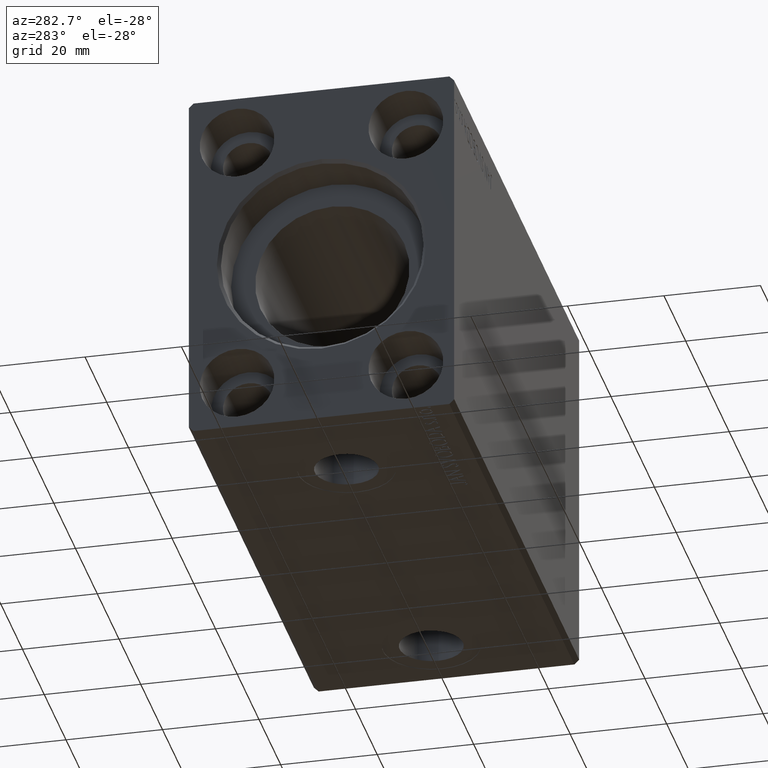
[diagram: clean part render]
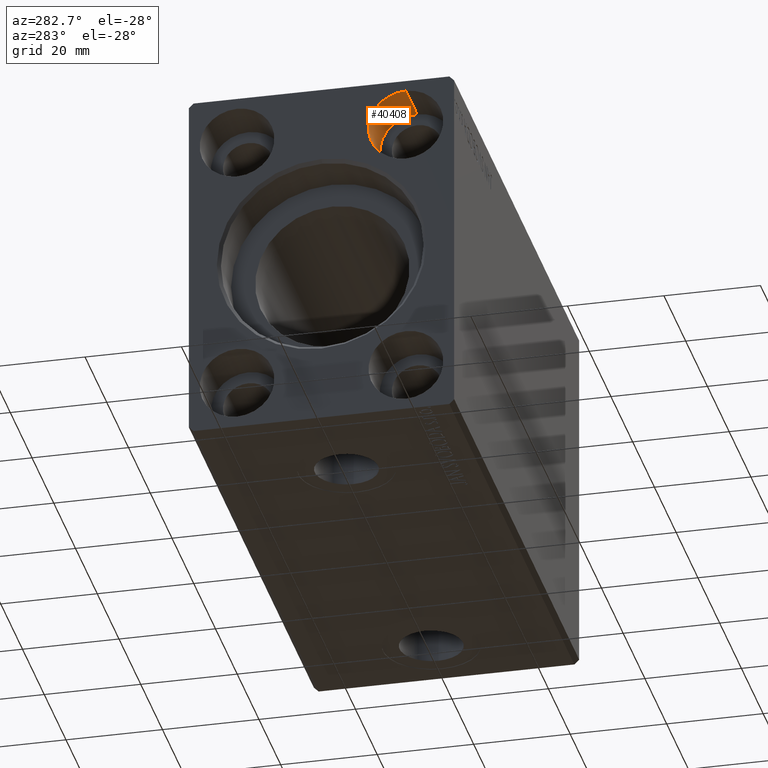
[diagram: same view with one face highlighted and labeled with its STEP entity id]
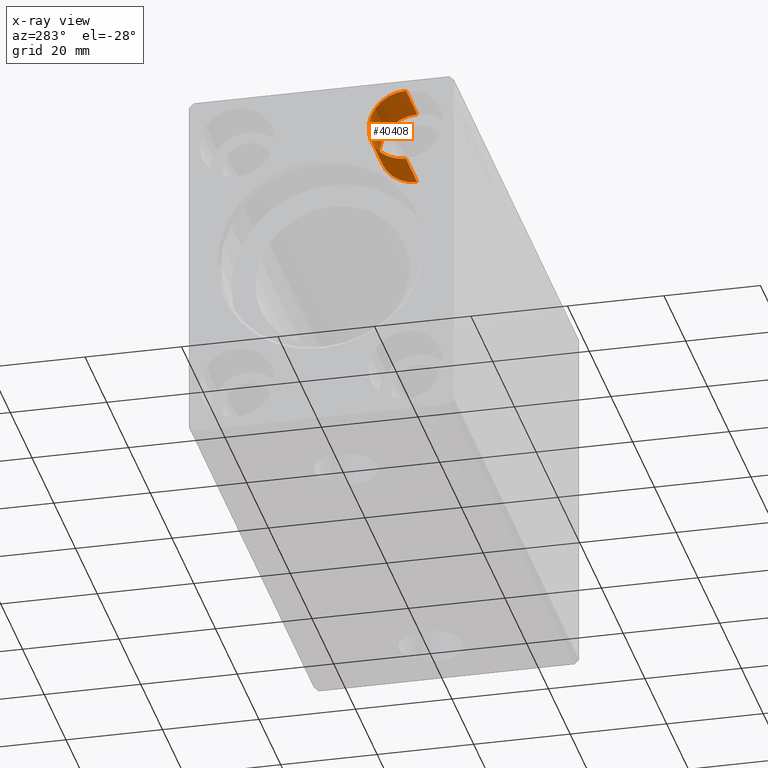
[diagram: x-ray of the same camera — body ghosted, the highlighted face saturated]
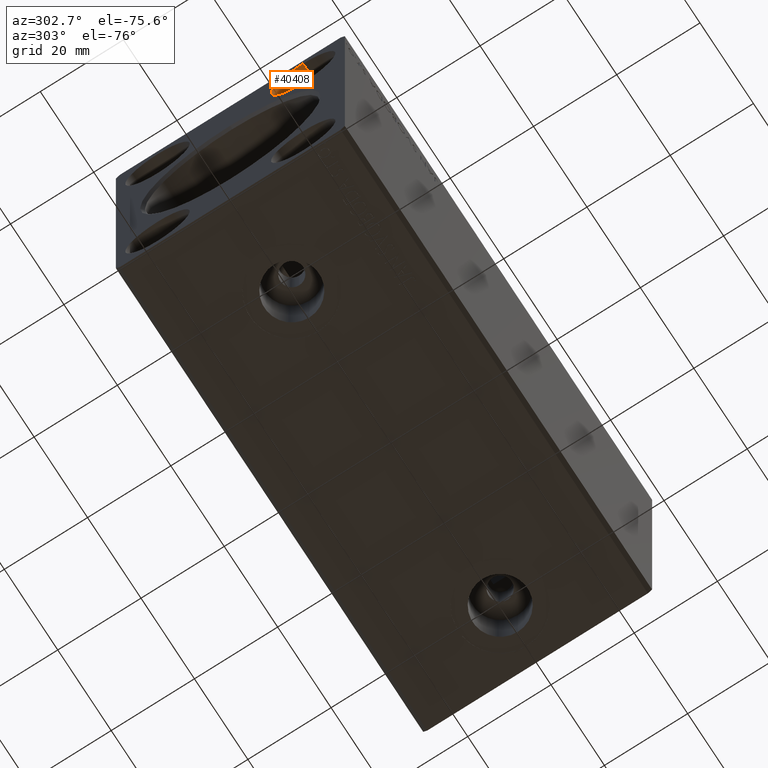
[diagram: same view with one face highlighted and labeled with its STEP entity id]
A machine part, auxiliary view. The second image highlights one B-rep face of the part: STEP entity #40408.
The next image is the same camera in x-ray: the body ghosted, the highlighted face saturated — about 0% of this face is hidden behind the body in this view.
A second angle (auxiliary view) of the same face is appended — the face is thin or edge-on in the first view.
In plain terms, the highlighted cylindrical surface (partial cylindrical patch) has radius 7.75 mm, axis along (-1, -0, -0).
Its self-contained STEP definition (entity closure, byte-faithful):
#157 = CARTESIAN_POINT ( 'NONE',  ( 10.33000000000000007, -17.50000000000000000, 19.74999999999999645 ) ) ;
#168 = VECTOR ( 'NONE', #16702, 1000.000000000000000 ) ;
#1293 = CARTESIAN_POINT ( 'NONE',  ( 0.000000000000000000, -17.50000000000000000, 35.25000000000000000 ) ) ;
#3417 = VERTEX_POINT ( 'NONE', #5822 ) ;
#4096 = EDGE_CURVE ( 'NONE', #3417, #23816, #20157, .T. ) ;
#5319 = VERTEX_POINT ( 'NONE', #19544 ) ;
#5579 = EDGE_LOOP ( 'NONE', ( #33314, #25995, #11446, #12311 ) ) ;
#5822 = CARTESIAN_POINT ( 'NONE',  ( 10.33000000000000007, -17.50000000000000000, 35.25000000000000000 ) ) ;
#9271 = VERTEX_POINT ( 'NONE', #157 ) ;
#10995 = CIRCLE ( 'NONE', #13106, 7.750000000000003553 ) ;
#11446 = ORIENTED_EDGE ( 'NONE', *, *, #4096, .T. ) ;
#12103 = DIRECTION ( 'NONE',  ( -1.000000000000000000, -0.000000000000000000, -0.000000000000000000 ) ) ;
#12188 = LINE ( 'NONE', #18225, #24893 ) ;
#12311 = ORIENTED_EDGE ( 'NONE', *, *, #39701, .T. ) ;
#13106 = AXIS2_PLACEMENT_3D ( 'NONE', #36430, #29135, #39034 ) ;
#16699 = AXIS2_PLACEMENT_3D ( 'NONE', #34532, #31087, #27634 ) ;
#16702 = DIRECTION ( 'NONE',  ( -1.000000000000000000, -0.000000000000000000, -0.000000000000000000 ) ) ;
#17700 = CYLINDRICAL_SURFACE ( 'NONE', #33960, 7.750000000000003553 ) ;
#18225 = CARTESIAN_POINT ( 'NONE',  ( 10.33000000000000007, -17.50000000000000000, 19.74999999999999645 ) ) ;
#18431 = DIRECTION ( 'NONE',  ( -1.000000000000000000, -0.000000000000000000, -0.000000000000000000 ) ) ;
#19526 = CARTESIAN_POINT ( 'NONE',  ( 10.33000000000000007, -17.50000000000000000, 35.25000000000000000 ) ) ;
#19544 = CARTESIAN_POINT ( 'NONE',  ( 0.000000000000000000, -17.50000000000000000, 19.74999999999999645 ) ) ;
#20157 = LINE ( 'NONE', #19526, #168 ) ;
#21586 = CARTESIAN_POINT ( 'NONE',  ( 10.33000000000000007, -17.50000000000000000, 27.50000000000000000 ) ) ;
#23816 = VERTEX_POINT ( 'NONE', #1293 ) ;
#24893 = VECTOR ( 'NONE', #18431, 1000.000000000000000 ) ;
#25995 = ORIENTED_EDGE ( 'NONE', *, *, #27223, .F. ) ;
#27223 = EDGE_CURVE ( 'NONE', #3417, #9271, #10995, .T. ) ;
#27634 = DIRECTION ( 'NONE',  ( 0.000000000000000000, 0.000000000000000000, 1.000000000000000000 ) ) ;
#29135 = DIRECTION ( 'NONE',  ( -1.000000000000000000, 0.000000000000000000, 0.000000000000000000 ) ) ;
#31087 = DIRECTION ( 'NONE',  ( -1.000000000000000000, 0.000000000000000000, 0.000000000000000000 ) ) ;
#31283 = FACE_OUTER_BOUND ( 'NONE', #5579, .T. ) ;
#32146 = EDGE_CURVE ( 'NONE', #9271, #5319, #12188, .T. ) ;
#33314 = ORIENTED_EDGE ( 'NONE', *, *, #32146, .F. ) ;
#33960 = AXIS2_PLACEMENT_3D ( 'NONE', #21586, #12103, #38170 ) ;
#34532 = CARTESIAN_POINT ( 'NONE',  ( 0.000000000000000000, -17.50000000000000000, 27.50000000000000000 ) ) ;
#36430 = CARTESIAN_POINT ( 'NONE',  ( 10.33000000000000007, -17.50000000000000000, 27.50000000000000000 ) ) ;
#38170 = DIRECTION ( 'NONE',  ( 0.000000000000000000, 0.000000000000000000, 1.000000000000000000 ) ) ;
#39034 = DIRECTION ( 'NONE',  ( 0.000000000000000000, 0.000000000000000000, 1.000000000000000000 ) ) ;
#39701 = EDGE_CURVE ( 'NONE', #23816, #5319, #41482, .T. ) ;
#40408 = ADVANCED_FACE ( 'NONE', ( #31283 ), #17700, .F. ) ;
#41482 = CIRCLE ( 'NONE', #16699, 7.750000000000003553 ) ;